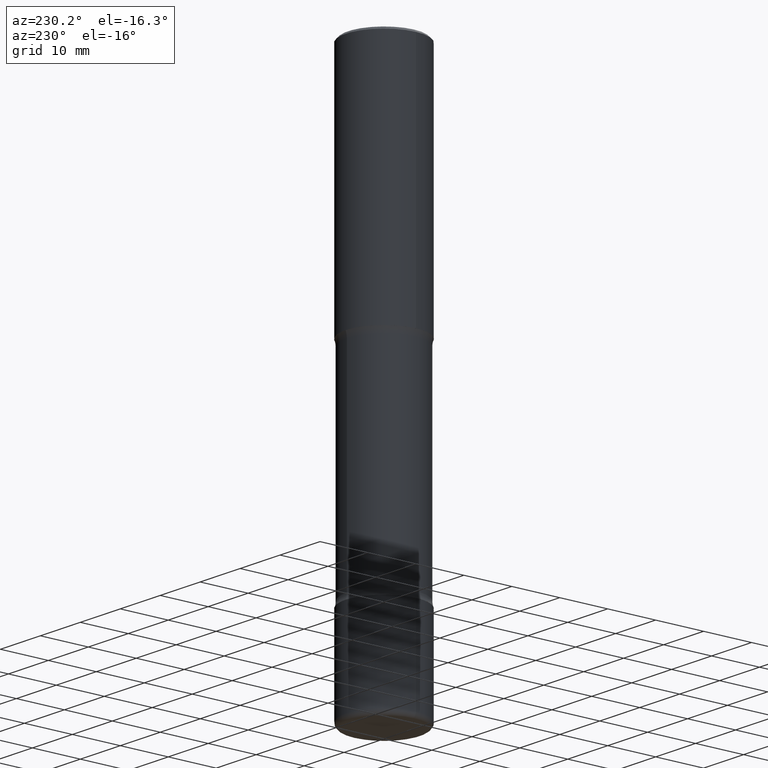
[diagram: clean part render]
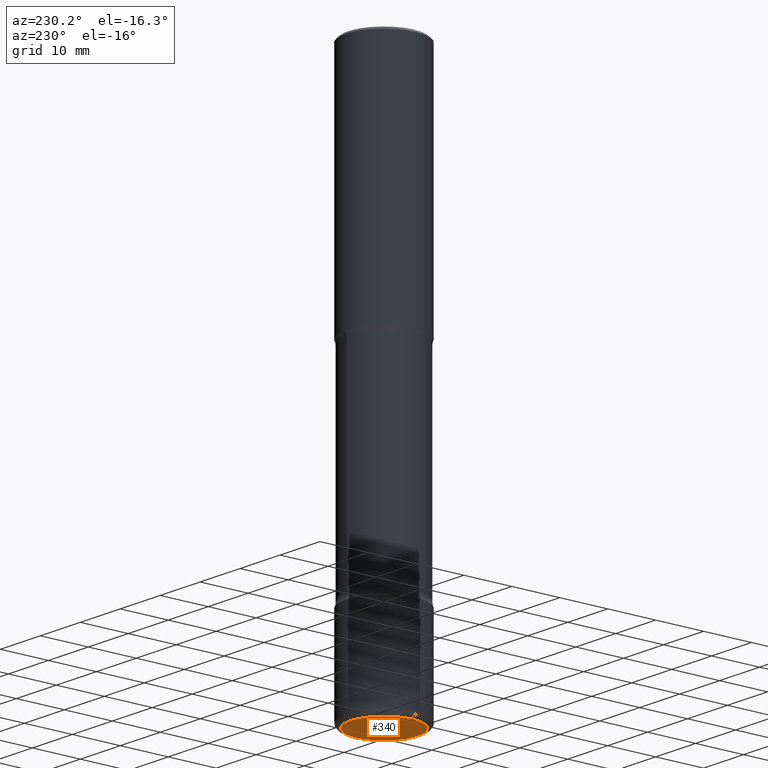
[diagram: same view with one face highlighted and labeled with its STEP entity id]
A machine part, auxiliary view. The second image highlights one B-rep face of the part: STEP entity #340.
In plain terms, the highlighted planar face has unit normal (0, -0, -1).
Its self-contained STEP definition (entity closure, byte-faithful):
#9 = FACE_OUTER_BOUND ( 'NONE', #151, .T. ) ;
#17 = CIRCLE ( 'NONE', #523, 0.2755500000000001837 ) ;
#62 = CARTESIAN_POINT ( 'NONE',  ( 1.107210456688382298E-28, -1.580803090974622389E-14, -4.527599999999999625 ) ) ;
#107 = CARTESIAN_POINT ( 'NONE',  ( -0.2755500000000001837, -1.364137130003931840E-14, -4.527599999999999625 ) ) ;
#125 = CARTESIAN_POINT ( 'NONE',  ( 1.734104124256122727E-28, -6.830556784459118398E-15, -4.527600000000000513 ) ) ;
#138 = DIRECTION ( 'NONE',  ( 2.438088387897960049E-29, -3.491481338843145188E-15, -1.000000000000000000 ) ) ;
#141 = EDGE_CURVE ( 'NONE', #352, #505, #243, .T. ) ;
#151 = EDGE_LOOP ( 'NONE', ( #341, #193 ) ) ;
#158 = CARTESIAN_POINT ( 'NONE',  ( 1.107210456688382298E-28, -1.580803090974622389E-14, -4.527599999999999625 ) ) ;
#193 = ORIENTED_EDGE ( 'NONE', *, *, #289, .F. ) ;
#235 = AXIS2_PLACEMENT_3D ( 'NONE', #158, #343, #471 ) ;
#241 = DIRECTION ( 'NONE',  ( 1.000000000000000000, -6.982962677686271444E-15, 0.000000000000000000 ) ) ;
#243 = CIRCLE ( 'NONE', #235, 0.2755500000000001837 ) ;
#289 = EDGE_CURVE ( 'NONE', #505, #352, #17, .T. ) ;
#340 = ADVANCED_FACE ( 'NONE', ( #9 ), #387, .T. ) ;
#341 = ORIENTED_EDGE ( 'NONE', *, *, #141, .F. ) ;
#343 = DIRECTION ( 'NONE',  ( -2.445468806185136597E-29, 3.491481338843145583E-15, 1.000000000000000000 ) ) ;
#352 = VERTEX_POINT ( 'NONE', #556 ) ;
#359 = DIRECTION ( 'NONE',  ( -1.000000000000000000, 6.982962677686265922E-15, -4.876176775795935793E-29 ) ) ;
#387 = PLANE ( 'NONE',  #447 ) ;
#447 = AXIS2_PLACEMENT_3D ( 'NONE', #125, #138, #359 ) ;
#471 = DIRECTION ( 'NONE',  ( 1.000000000000000000, -6.982962677686271444E-15, 0.000000000000000000 ) ) ;
#497 = DIRECTION ( 'NONE',  ( -2.445468806185136597E-29, 3.491481338843145583E-15, 1.000000000000000000 ) ) ;
#505 = VERTEX_POINT ( 'NONE', #107 ) ;
#523 = AXIS2_PLACEMENT_3D ( 'NONE', #62, #497, #241 ) ;
#556 = CARTESIAN_POINT ( 'NONE',  ( 0.2755500000000001837, -1.773218627558267691E-14, -4.527599999999999625 ) ) ;